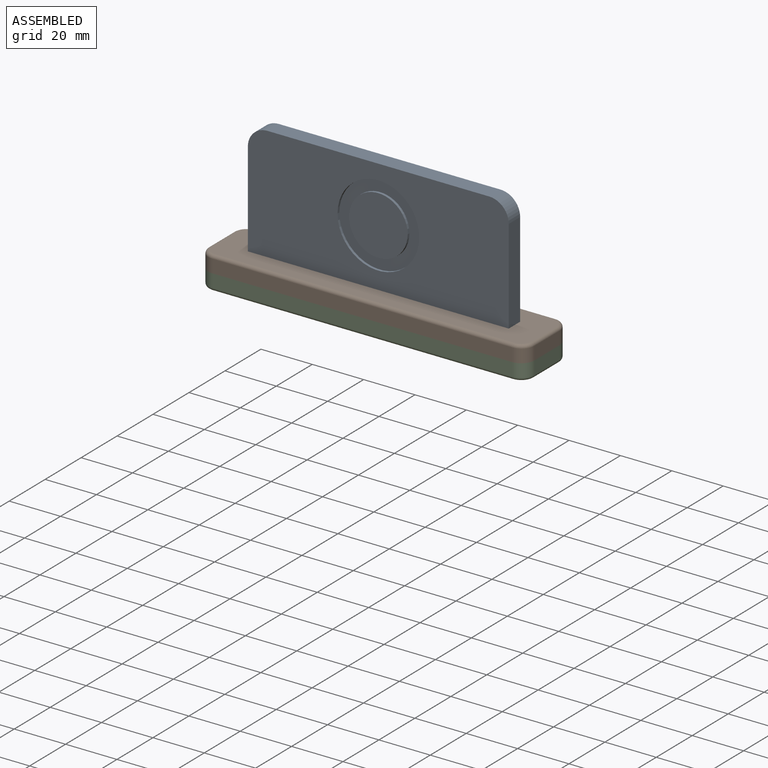
[diagram: assembled view]
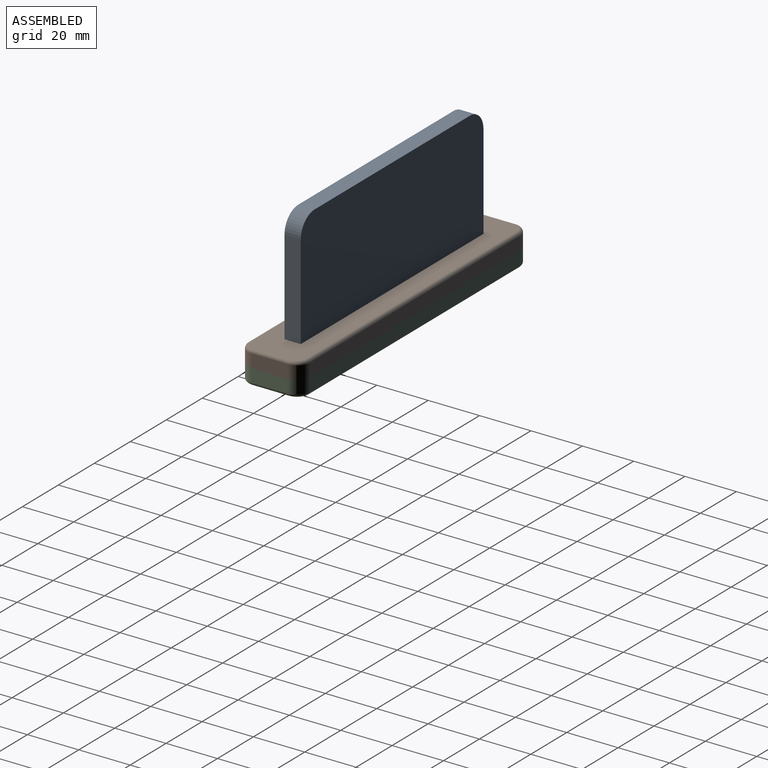
[diagram: assembled view, second angle]
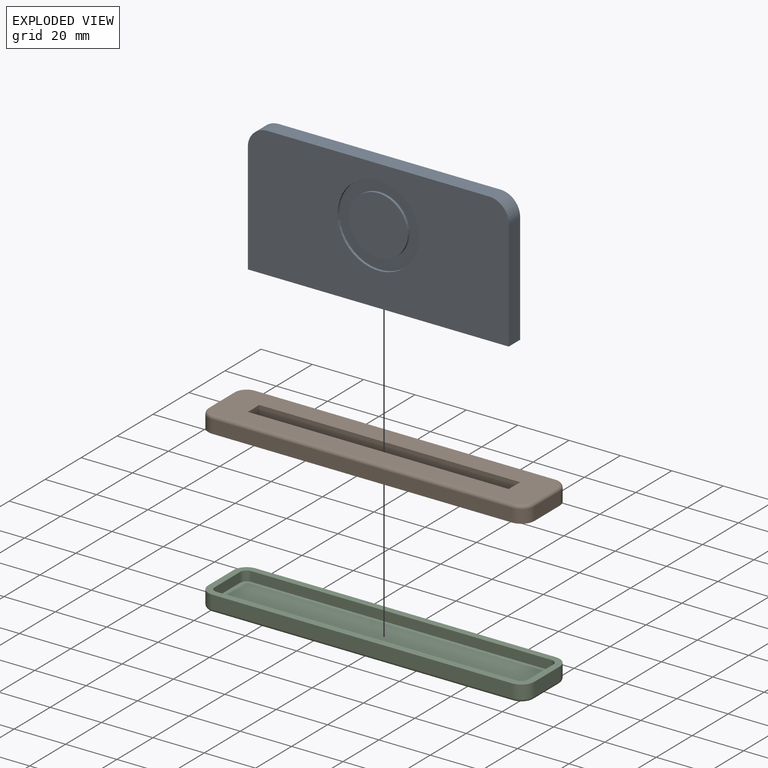
[diagram: exploded view]
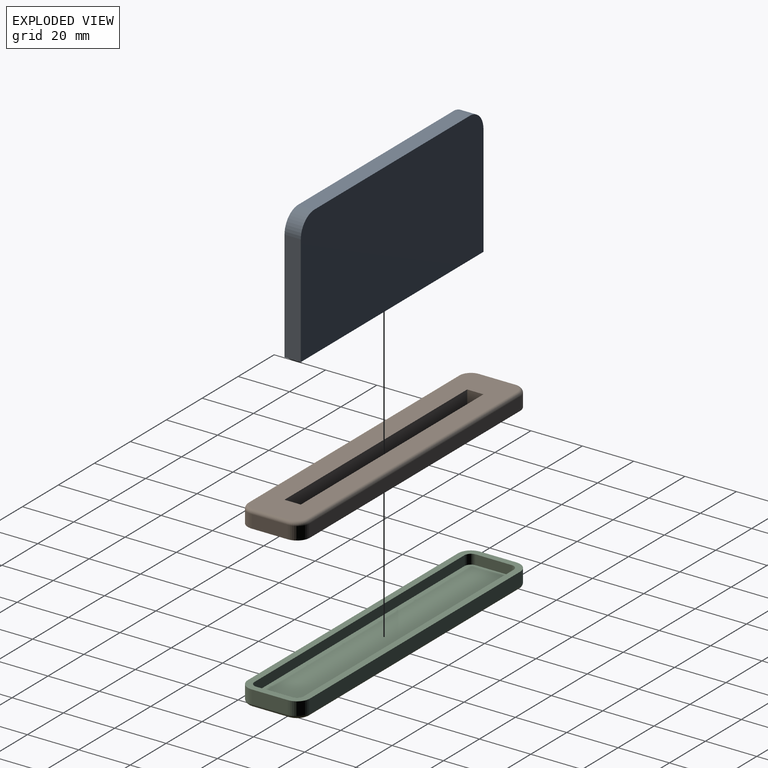
[diagram: exploded view, second angle]
ASSEMBLY  parts=3 mates=2
PART A: 12 faces, bbox 101.6x50.8x6.4 mm
  f0: plane 43.18x6.35mm, normal (1,0,0), area 274.2mm2, adj f3,f4,f5,f10
  f1: plane 86.36x6.35mm, normal (0,1,0), area 548.4mm2, adj f4,f5,f10,f11
  f2: plane 43.18x6.35mm, normal (-1,0,0), area 274.2mm2, adj f3,f4,f5,f11
  f3: plane 101.6x6.35mm, normal (0,-1,0), area 645.2mm2, adj f0,f2,f4,f5
  f4: plane 101.6x50.8mm, normal (0,0,1), area 4344.6mm2, adj f0,f1,f2,f3,f7,f10,f11
  f5: plane 101.6x50.8mm, normal (0,0,-1), area 5136.4mm2, adj f0,f1,f2,f3,f10,f11
  f6: cylinder r=11.43mm len=22.86mm, axis (0,0,1), area 71.8mm2, adj f8,f9
  f7: cylinder r=15.88mm len=31.75mm, axis (0,0,1), area 99.7mm2, adj f4,f8
  f8: plane 31.75x31.75mm, normal (0,0,1), area 381.3mm2, adj f6,f7
  f9: plane 22.86x22.86mm, normal (0,0,1), area 410.4mm2, adj f6
  f10: cylinder r=7.62mm len=7.62mm, axis (0,0,-1), area 76mm2, adj f0,f1,f4,f5
  f11: cylinder r=7.62mm len=7.62mm, axis (0,0,1), area 76mm2, adj f1,f2,f4,f5
PART B: 22 faces, bbox 127.8x25.1x6.4 mm
  f0: plane 14.06x5.08mm, normal (1,0,0), area 71.4mm2, adj f9,f10,f13,f17
  f1: plane 116.84x5.08mm, normal (0,1,0), area 593.5mm2, adj f9,f10,f11,f21
  f2: plane 14.06x5.08mm, normal (-1,0,0), area 71.4mm2, adj f9,f11,f12,f18
  f3: plane 101.6x6.35mm, normal (0,1,0), area 645.2mm2, adj f4,f6,f8,f9
  f4: plane 6.35x6.35mm, normal (1,0,0), area 40.3mm2, adj f3,f5,f8,f9
  f5: plane 101.6x6.35mm, normal (0,-1,0), area 645.2mm2, adj f4,f6,f8,f9
  f6: plane 6.35x6.35mm, normal (-1,0,0), area 40.3mm2, adj f3,f5,f8,f9
  f7: plane 116.84x5.08mm, normal (0,-1,0), area 593.5mm2, adj f9,f12,f13,f14
  f8: plane 124.46x21.68mm, normal (0,0,1), area 2041.2mm2, adj f3,f4,f5,f6,f14,f15,f16,f17
  f9: plane 127x24.22mm, normal (0,0,-1), area 2409.2mm2, adj f0,f1,f2,f3,f4,f5,f6,f7
  f10: cylinder r=5.08mm len=5.08mm, axis (0,0,-1), area 40.5mm2, adj f0,f1,f9,f19
  f11: cylinder r=5.08mm len=5.08mm, axis (0,0,1), area 40.5mm2, adj f1,f2,f9,f20
  f12: cylinder r=5.08mm len=5.08mm, axis (0,0,-1), area 40.5mm2, adj f2,f7,f9,f16
  f13: cylinder r=5.08mm len=5.08mm, axis (0,0,1), area 40.5mm2, adj f0,f7,f9,f15
  f14: cylinder r=1.27mm len=116.84mm, axis (-1,0,0), area 233.1mm2, adj f7,f8,f15,f16
  f15: torus R=3.81mm, axis (0,0,1), area 14.5mm2, adj f8,f13,f14,f17
  f16: torus R=3.81mm, axis (0,0,1), area 14.5mm2, adj f8,f12,f14,f18
  f17: cylinder r=1.27mm len=14.06mm, axis (0,-1,0), area 28.1mm2, adj f0,f8,f15,f19
  f18: cylinder r=1.27mm len=14.06mm, axis (0,1,0), area 28.1mm2, adj f2,f8,f16,f20
  f19: torus R=3.81mm, axis (0,0,1), area 14.5mm2, adj f8,f10,f17,f21
  f20: torus R=3.81mm, axis (0,0,1), area 14.5mm2, adj f8,f11,f18,f21
  f21: cylinder r=1.27mm len=116.84mm, axis (1,0,0), area 233.1mm2, adj f1,f8,f19,f20
PART C: 27 faces, bbox 127.8x25.1x6.4 mm
  f0: plane 14.06x5.08mm, normal (1,0,0), area 71.4mm2, adj f4,f6,f9,f16
  f1: plane 116.84x5.08mm, normal (0,1,0), area 593.5mm2, adj f4,f6,f7,f15
  f2: plane 14.06x5.08mm, normal (-1,0,0), area 71.4mm2, adj f4,f7,f8,f11
  f3: plane 116.84x5.08mm, normal (0,-1,0), area 593.5mm2, adj f4,f8,f9,f12
  f4: plane 127x24.22mm, normal (0,0,1), area 725.8mm2, adj f0,f1,f2,f3,f6,f7,f8,f9
  f5: plane 124.46x21.68mm, normal (0,0,-1), area 2686.4mm2, adj f10,f11,f12,f13,f14,f15,f16,f17
  f6: cylinder r=5.08mm len=5.08mm, axis (0,0,-1), area 40.5mm2, adj f0,f1,f4,f17
  f7: cylinder r=5.08mm len=5.08mm, axis (0,0,1), area 40.5mm2, adj f1,f2,f4,f13
  f8: cylinder r=5.08mm len=5.08mm, axis (0,0,-1), area 40.5mm2, adj f2,f3,f4,f10
  f9: cylinder r=5.08mm len=5.08mm, axis (0,0,1), area 40.5mm2, adj f0,f3,f4,f14
  f10: torus R=3.81mm, axis (0,0,1), area 14.5mm2, adj f5,f8,f11,f12
  f11: cylinder r=1.27mm len=14.06mm, axis (0,-1,0), area 28.1mm2, adj f2,f5,f10,f13
  f12: cylinder r=1.27mm len=116.84mm, axis (1,0,0), area 233.1mm2, adj f3,f5,f10,f14
  f13: torus R=3.81mm, axis (0,0,1), area 14.5mm2, adj f5,f7,f11,f15
  f14: torus R=3.81mm, axis (0,0,1), area 14.5mm2, adj f5,f9,f12,f16
  f15: cylinder r=1.27mm len=116.84mm, axis (-1,0,0), area 233.1mm2, adj f1,f5,f13,f17
  f16: cylinder r=1.27mm len=14.06mm, axis (0,1,0), area 28.1mm2, adj f0,f5,f14,f17
  f17: torus R=3.81mm, axis (0,0,1), area 14.5mm2, adj f5,f6,f15,f16
  f18: plane 14.06x3.81mm, normal (-1,0,0), area 53.6mm2, adj f4,f22,f23,f26
  f19: plane 116.84x3.81mm, normal (0,-1,0), area 445.2mm2, adj f4,f22,f23,f24
  f20: plane 14.06x3.81mm, normal (1,0,0), area 53.6mm2, adj f4,f22,f24,f25
  f21: plane 116.84x3.81mm, normal (0,1,0), area 445.2mm2, adj f4,f22,f25,f26
  f22: plane 121.92x19.14mm, normal (0,0,1), area 2328.5mm2, adj f18,f19,f20,f21,f23,f24,f25,f26
  f23: cylinder r=2.54mm len=3.81mm, axis (0,0,-1), area 15.2mm2, adj f4,f18,f19,f22
  f24: cylinder r=2.54mm len=3.81mm, axis (0,0,1), area 15.2mm2, adj f4,f19,f20,f22
  f25: cylinder r=2.54mm len=3.81mm, axis (0,0,-1), area 15.2mm2, adj f4,f20,f21,f22
  f26: cylinder r=2.54mm len=3.81mm, axis (0,0,1), area 15.2mm2, adj f4,f18,f21,f22
PLACE A rot(axis=(1,0,0),90deg) t=(58.9,19.71,-1.68)mm
PLACE B t=(91.9,16.42,19.54)mm
PLACE C t=(-41.15,16.53,13.19)mm
MATE fastened A.f3 <-> B.f9  axis (0,0,-1) through (-48.39,16.53,19.54)mm
MATE fastened C.f4 <-> B.f9  axis (0,0,1) through (-61.09,23.57,19.54)mm
